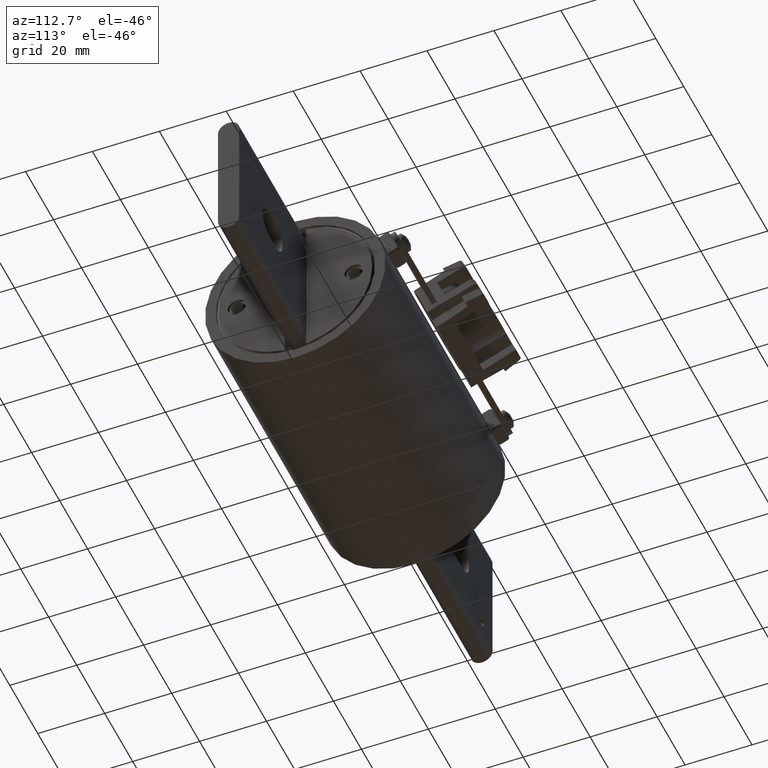
[diagram: clean part render]
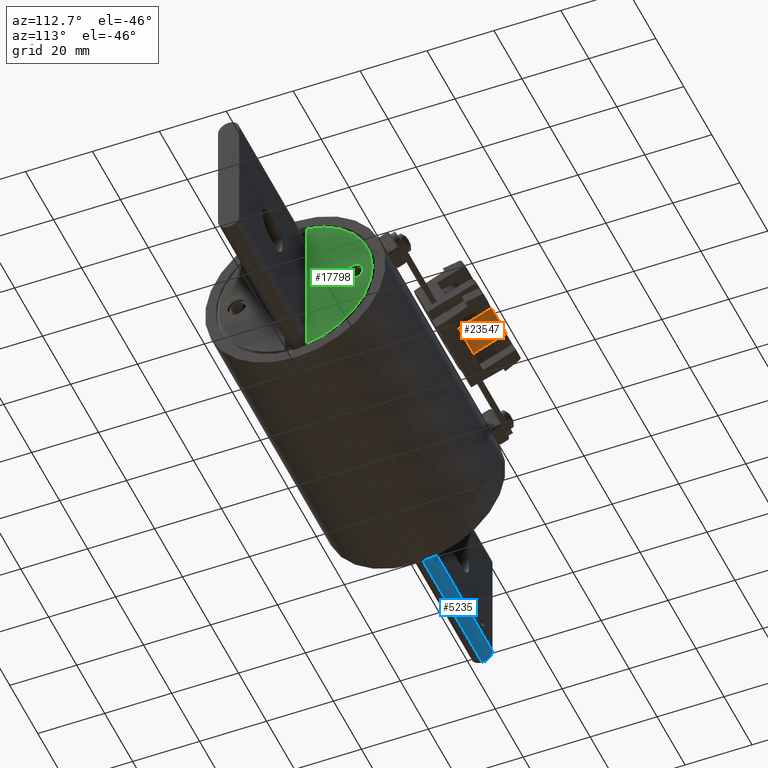
[diagram: same view with three faces highlighted in distinct colors, each labeled with its STEP entity id]
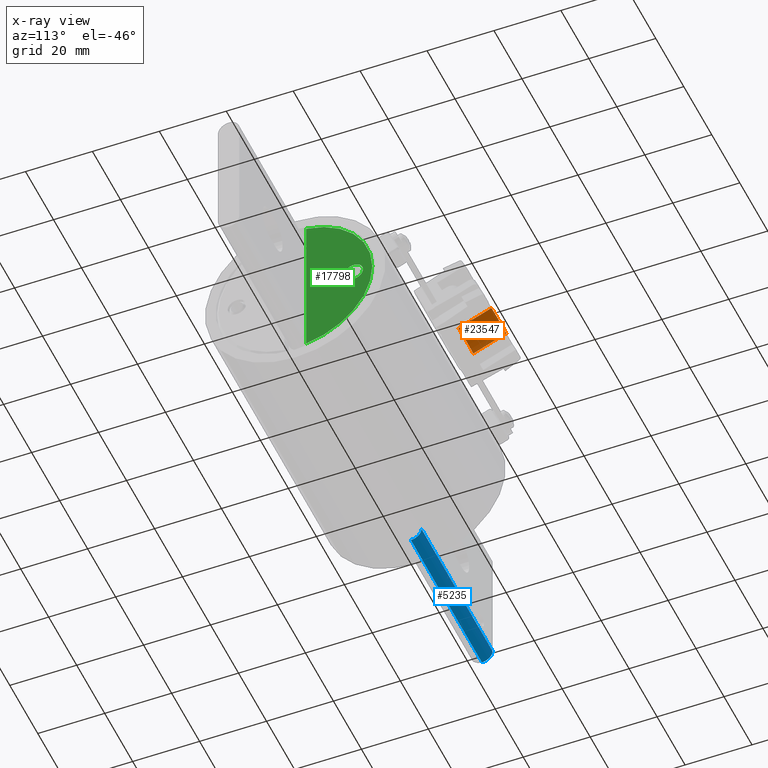
[diagram: x-ray of the same camera — body ghosted, the three highlighted faces saturated]
A machine part, auxiliary view with three faces highlighted in distinct colors.
The next image is the same camera in x-ray (body ghosted, the three faces saturated) — at least one of them is partly hidden behind the body in this view.
Their STEP definitions:

[orange] entity #23547 — the highlighted cylindrical surface (edge-blend (fillet) strip) has radius 7.9079 mm, axis along (-0, -0.9239, -0.3827).
#790 = CARTESIAN_POINT ( 'NONE',  ( 0.2076263646641025900, 1.300804138844728700, 0.2877036624375046100 ) ) ;
#1037 = ORIENTED_EDGE ( 'NONE', *, *, #20648, .F. ) ;
#1482 = EDGE_CURVE ( 'NONE', #34919, #29763, #5807, .T. ) ;
#2093 = AXIS2_PLACEMENT_3D ( 'NONE', #19766, #39425, #29579 ) ;
#2834 = VERTEX_POINT ( 'NONE', #10867 ) ;
#3220 = DIRECTION ( 'NONE',  ( -4.687811993774749400E-017, -0.9238795325112905100, -0.3826834323650807900 ) ) ;
#4623 = CARTESIAN_POINT ( 'NONE',  ( -0.2076263646641025300, 1.300804138844728900, 0.2877036624375046100 ) ) ;
#5807 = CIRCLE ( 'NONE', #2093, 0.3113347155278811700 ) ;
#6288 = CARTESIAN_POINT ( 'NONE',  ( -5.328228214988090000E-018, 1.600053792204313400, 0.6627639812575102400 ) ) ;
#9663 = DIRECTION ( 'NONE',  ( 2.070557732466594400E-017, 0.3826834323650811200, -0.9238795325112904000 ) ) ;
#10867 = CARTESIAN_POINT ( 'NONE',  ( -0.2076263646641025300, 1.688833542499470700, 0.4484307040308384600 ) ) ;
#14156 = FACE_OUTER_BOUND ( 'NONE', #40235, .T. ) ;
#14765 = VECTOR ( 'NONE', #3220, 39.37007874015748900 ) ;
#16445 = CARTESIAN_POINT ( 'NONE',  ( -0.2076263646641025000, 2.399749818371566000, 0.7429018672088247800 ) ) ;
#16988 = ORIENTED_EDGE ( 'NONE', *, *, #24690, .T. ) ;
#17709 = AXIS2_PLACEMENT_3D ( 'NONE', #40758, #20688, #37529 ) ;
#17909 = CARTESIAN_POINT ( 'NONE',  ( 0.2076263646641026400, 2.399749818371566000, 0.7429018672088247800 ) ) ;
#18280 = LINE ( 'NONE', #17909, #35040 ) ;
#18817 = CYLINDRICAL_SURFACE ( 'NONE', #17709, 0.3113347155278812200 ) ;
#19766 = CARTESIAN_POINT ( 'NONE',  ( -2.501703858884203200E-017, 1.212024388549571400, 0.5020369396641764000 ) ) ;
#20648 = EDGE_CURVE ( 'NONE', #2834, #29763, #41407, .T. ) ;
#20688 = DIRECTION ( 'NONE',  ( -4.687811993774748800E-017, -0.9238795325112904000, -0.3826834323650807300 ) ) ;
#23002 = VERTEX_POINT ( 'NONE', #41625 ) ;
#23547 = ADVANCED_FACE ( 'NONE', ( #14156 ), #18817, .T. ) ;
#24690 = EDGE_CURVE ( 'NONE', #2834, #23002, #38553, .T. ) ;
#29579 = DIRECTION ( 'NONE',  ( -2.070557732466595100E-017, -0.3826834323650807300, 0.9238795325112905100 ) ) ;
#29705 = DIRECTION ( 'NONE',  ( -4.687811993774750000E-017, -0.9238795325112906200, -0.3826834323650809000 ) ) ;
#29763 = VERTEX_POINT ( 'NONE', #4623 ) ;
#34919 = VERTEX_POINT ( 'NONE', #790 ) ;
#35040 = VECTOR ( 'NONE', #39402, 39.37007874015748900 ) ;
#35937 = ORIENTED_EDGE ( 'NONE', *, *, #39215, .T. ) ;
#37351 = AXIS2_PLACEMENT_3D ( 'NONE', #6288, #29705, #9663 ) ;
#37529 = DIRECTION ( 'NONE',  ( 2.070557732466593200E-017, 0.3826834323650811200, -0.9238795325112904000 ) ) ;
#38553 = CIRCLE ( 'NONE', #37351, 0.3113347155278812200 ) ;
#39215 = EDGE_CURVE ( 'NONE', #23002, #34919, #18280, .T. ) ;
#39402 = DIRECTION ( 'NONE',  ( -4.687811993774749400E-017, -0.9238795325112905100, -0.3826834323650807900 ) ) ;
#39425 = DIRECTION ( 'NONE',  ( 4.687811993774750000E-017, 0.9238795325112906200, 0.3826834323650808400 ) ) ;
#40016 = ORIENTED_EDGE ( 'NONE', *, *, #1482, .T. ) ;
#40235 = EDGE_LOOP ( 'NONE', ( #1037, #16988, #35937, #40016 ) ) ;
#40758 = CARTESIAN_POINT ( 'NONE',  ( 3.074402717467396900E-017, 2.310970068076408300, 0.9572351444354966200 ) ) ;
#41407 = LINE ( 'NONE', #16445, #14765 ) ;
#41625 = CARTESIAN_POINT ( 'NONE',  ( 0.2076263646641025900, 1.688833542499470700, 0.4484307040308384600 ) ) ;

[blue] entity #5235 — the highlighted cylindrical surface (edge-blend (fillet) strip) has radius 3.175 mm, axis along (-1, 0, 0).
#1008 = AXIS2_PLACEMENT_3D ( 'NONE', #13440, #13404, #13351 ) ;
#1114 = CARTESIAN_POINT ( 'NONE',  ( -3.562500000000000000, -1.214542904205320800E-016, -0.8124999999999995600 ) ) ;
#1818 = LINE ( 'NONE', #18789, #36404 ) ;
#3680 = VERTEX_POINT ( 'NONE', #41698 ) ;
#3891 = EDGE_CURVE ( 'NONE', #6968, #3680, #1818, .T. ) ;
#4230 = DIRECTION ( 'NONE',  ( -1.000000000000000000, 1.190086841554902200E-017, 2.254598235796355800E-016 ) ) ;
#5235 = ADVANCED_FACE ( 'NONE', ( #30094 ), #8695, .T. ) ;
#6968 = VERTEX_POINT ( 'NONE', #1114 ) ;
#7137 = AXIS2_PLACEMENT_3D ( 'NONE', #12055, #12098, #10269 ) ;
#7601 = CIRCLE ( 'NONE', #1008, 0.1250000000000000000 ) ;
#8695 = CYLINDRICAL_SURFACE ( 'NONE', #7137, 0.1250000000000000300 ) ;
#9189 = ORIENTED_EDGE ( 'NONE', *, *, #10695, .F. ) ;
#10123 = ORIENTED_EDGE ( 'NONE', *, *, #39471, .F. ) ;
#10269 = DIRECTION ( 'NONE',  ( 0.0000000000000000000, 0.0000000000000000000, 1.000000000000000000 ) ) ;
#10695 = EDGE_CURVE ( 'NONE', #3680, #14539, #7601, .T. ) ;
#12055 = CARTESIAN_POINT ( 'NONE',  ( -1.562500000000000700, -1.452560272516301200E-016, -0.6874999999999998900 ) ) ;
#12098 = DIRECTION ( 'NONE',  ( -1.000000000000000000, 1.190086841554902200E-017, 2.254598235796355800E-016 ) ) ;
#12143 = CARTESIAN_POINT ( 'NONE',  ( -3.562500000000000000, -1.214542904205320800E-016, -0.6874999999999994400 ) ) ;
#13351 = DIRECTION ( 'NONE',  ( 0.0000000000000000000, 1.000000000000000000, 0.0000000000000000000 ) ) ;
#13404 = DIRECTION ( 'NONE',  ( 1.000000000000000000, -1.190086841554902200E-017, 1.160211756283973200E-016 ) ) ;
#13440 = CARTESIAN_POINT ( 'NONE',  ( -1.562500000000000000, -1.452560272516301400E-016, -0.6874999999999998900 ) ) ;
#14539 = VERTEX_POINT ( 'NONE', #36071 ) ;
#15002 = VERTEX_POINT ( 'NONE', #26727 ) ;
#15486 = DIRECTION ( 'NONE',  ( 0.0000000000000000000, -1.000000000000000000, 0.0000000000000000000 ) ) ;
#17556 = CARTESIAN_POINT ( 'NONE',  ( -1.562500000000000700, 0.1249999999999998500, -0.6874999999999998900 ) ) ;
#18789 = CARTESIAN_POINT ( 'NONE',  ( -1.562500000000000000, -1.452560272516301400E-016, -0.8125000000000000000 ) ) ;
#20574 = DIRECTION ( 'NONE',  ( 1.000000000000000000, -1.190086841554902200E-017, -2.254598235796355800E-016 ) ) ;
#20825 = VECTOR ( 'NONE', #4230, 39.37007874015748100 ) ;
#23065 = EDGE_CURVE ( 'NONE', #15002, #6968, #23095, .T. ) ;
#23095 = CIRCLE ( 'NONE', #42599, 0.1250000000000000000 ) ;
#26727 = CARTESIAN_POINT ( 'NONE',  ( -3.562500000000000000, 0.1249999999999998800, -0.6874999999999994400 ) ) ;
#27396 = ORIENTED_EDGE ( 'NONE', *, *, #23065, .F. ) ;
#29760 = LINE ( 'NONE', #17556, #20825 ) ;
#29791 = ORIENTED_EDGE ( 'NONE', *, *, #3891, .F. ) ;
#30094 = FACE_OUTER_BOUND ( 'NONE', #34553, .T. ) ;
#34553 = EDGE_LOOP ( 'NONE', ( #10123, #9189, #29791, #27396 ) ) ;
#35508 = DIRECTION ( 'NONE',  ( -1.000000000000000000, 1.190086841554902200E-017, -1.160211756283973200E-016 ) ) ;
#36071 = CARTESIAN_POINT ( 'NONE',  ( -1.562500000000000000, 0.1249999999999998500, -0.6874999999999998900 ) ) ;
#36404 = VECTOR ( 'NONE', #20574, 39.37007874015748100 ) ;
#39471 = EDGE_CURVE ( 'NONE', #14539, #15002, #29760, .T. ) ;
#41698 = CARTESIAN_POINT ( 'NONE',  ( -1.562500000000000000, -1.452560272516301400E-016, -0.8125000000000000000 ) ) ;
#42599 = AXIS2_PLACEMENT_3D ( 'NONE', #12143, #35508, #15486 ) ;

[green] entity #17798 — the highlighted planar face has unit normal (-1, -0, 0).
#1295 = DIRECTION ( 'NONE',  ( 0.0000000000000000000, 0.0000000000000000000, -1.000000000000000000 ) ) ;
#3479 = CIRCLE ( 'NONE', #33352, 0.1087500000000000000 ) ;
#3556 = ORIENTED_EDGE ( 'NONE', *, *, #28155, .F. ) ;
#5423 = EDGE_CURVE ( 'NONE', #9456, #31088, #37439, .T. ) ;
#9456 = VERTEX_POINT ( 'NONE', #42197 ) ;
#10962 = CARTESIAN_POINT ( 'NONE',  ( 1.687500000000000000, 1.925952884265300700E-017, -3.009820032010595900E-033 ) ) ;
#14330 = DIRECTION ( 'NONE',  ( 0.0000000000000000000, -2.831868855191178100E-017, 1.000000000000000000 ) ) ;
#15629 = DIRECTION ( 'NONE',  ( -1.000000000000000000, -5.551115123125782700E-017, 7.641201682816392300E-033 ) ) ;
#17798 = ADVANCED_FACE ( 'NONE', ( #25906, #28022 ), #38877, .F. ) ;
#19804 = EDGE_LOOP ( 'NONE', ( #3556 ) ) ;
#20468 = DIRECTION ( 'NONE',  ( 9.213204685692459300E-033, -2.831868855191178700E-017, 1.000000000000000000 ) ) ;
#20650 = AXIS2_PLACEMENT_3D ( 'NONE', #35656, #15629, #39012 ) ;
#21380 = DIRECTION ( 'NONE',  ( 1.000000000000000000, 5.551115123125782700E-017, 1.509484908143512800E-033 ) ) ;
#22582 = CARTESIAN_POINT ( 'NONE',  ( 1.687500000000000000, 0.1280000000000000000, 0.9359999999999998300 ) ) ;
#25906 = FACE_BOUND ( 'NONE', #19804, .T. ) ;
#28022 = FACE_OUTER_BOUND ( 'NONE', #29542, .T. ) ;
#28155 = EDGE_CURVE ( 'NONE', #41974, #41974, #3479, .T. ) ;
#28336 = CARTESIAN_POINT ( 'NONE',  ( 1.687500000000000000, 0.1280000000000000000, 0.8969124817951847900 ) ) ;
#28533 = VECTOR ( 'NONE', #20468, 39.37007874015748100 ) ;
#28668 = AXIS2_PLACEMENT_3D ( 'NONE', #10962, #34388, #14330 ) ;
#29542 = EDGE_LOOP ( 'NONE', ( #31454, #42446 ) ) ;
#31088 = VERTEX_POINT ( 'NONE', #28336 ) ;
#31454 = ORIENTED_EDGE ( 'NONE', *, *, #32663, .T. ) ;
#32663 = EDGE_CURVE ( 'NONE', #9456, #31088, #40857, .T. ) ;
#33352 = AXIS2_PLACEMENT_3D ( 'NONE', #41396, #21380, #1295 ) ;
#34388 = DIRECTION ( 'NONE',  ( 1.000000000000000000, 5.551115123125782700E-017, 1.509484908143512800E-033 ) ) ;
#35656 = CARTESIAN_POINT ( 'NONE',  ( 1.687500000000000000, 1.925952884265300700E-017, -3.009820032010595900E-033 ) ) ;
#37439 = LINE ( 'NONE', #22582, #28533 ) ;
#38877 = PLANE ( 'NONE',  #20650 ) ;
#39012 = DIRECTION ( 'NONE',  ( 9.213204685692457900E-033, -2.831868855191178700E-017, 1.000000000000000000 ) ) ;
#39322 = CARTESIAN_POINT ( 'NONE',  ( 1.687500000000000000, 0.6875000000000000000, -0.1087499999999999900 ) ) ;
#40857 = CIRCLE ( 'NONE', #28668, 0.9059999999999989200 ) ;
#41396 = CARTESIAN_POINT ( 'NONE',  ( 1.687500000000000000, 0.6875000000000000000, 1.946909837943933900E-017 ) ) ;
#41974 = VERTEX_POINT ( 'NONE', #39322 ) ;
#42197 = CARTESIAN_POINT ( 'NONE',  ( 1.687500000000000000, 0.1280000000000000300, -0.8969124817951849000 ) ) ;
#42446 = ORIENTED_EDGE ( 'NONE', *, *, #5423, .F. ) ;